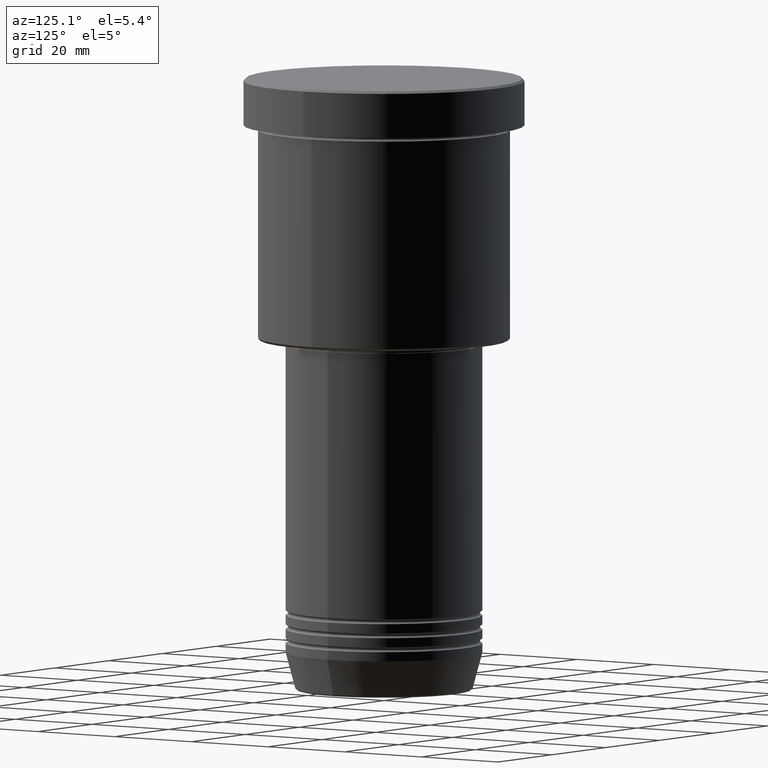
[diagram: clean part render]
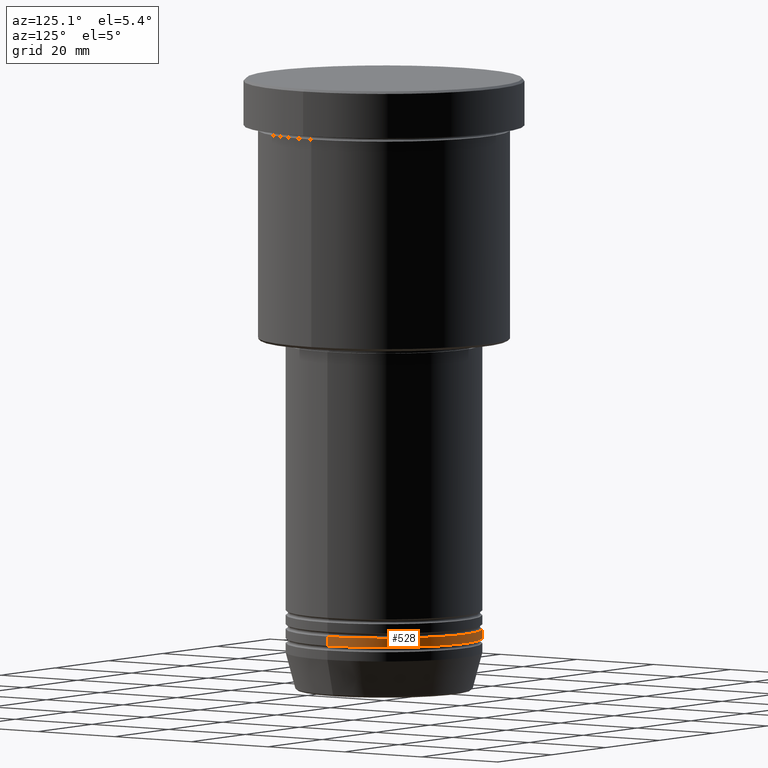
[diagram: same view with one face highlighted and labeled with its STEP entity id]
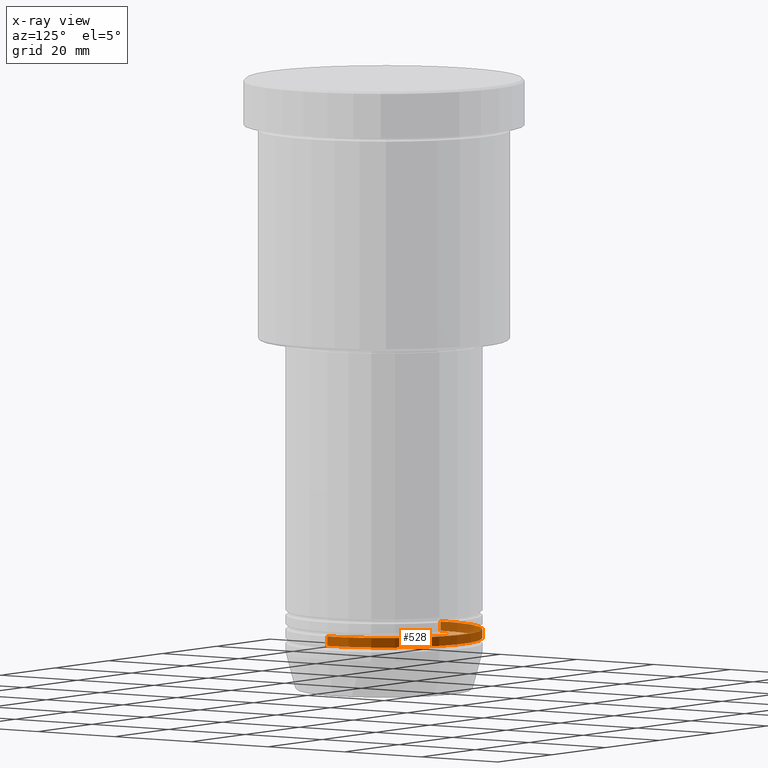
[diagram: x-ray of the same camera — body ghosted, the highlighted face saturated]
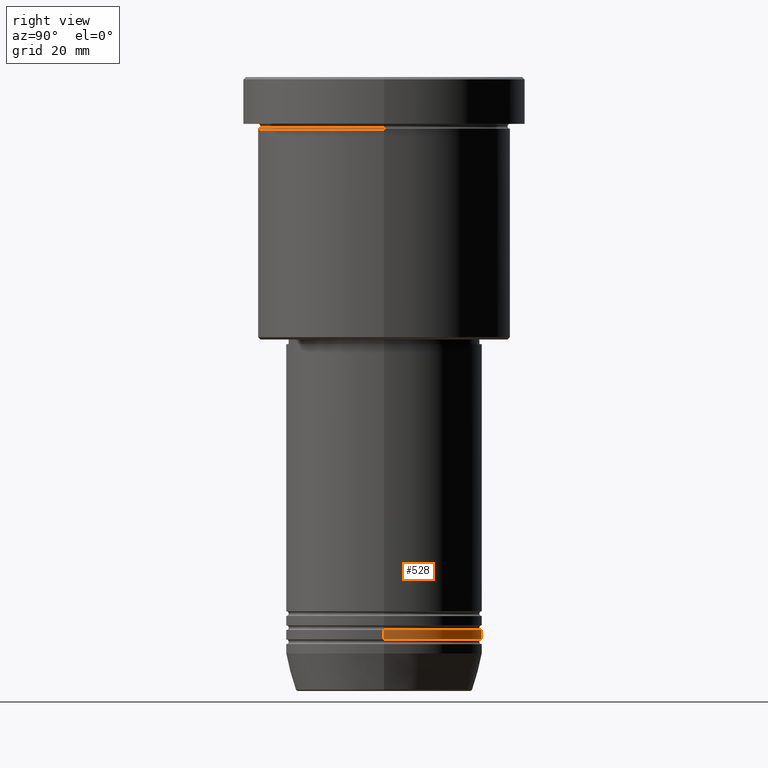
[diagram: same view with one face highlighted and labeled with its STEP entity id]
A machine part, auxiliary view. The second image highlights one B-rep face of the part: STEP entity #528.
The next image is the same camera in x-ray: the body ghosted, the highlighted face saturated — about 17% of this face is hidden behind the body in this view.
A second angle (right view) of the same face is appended — the face is thin or edge-on in the first view.
In plain terms, the highlighted cylindrical surface (partial cylindrical patch) has radius 21 mm, axis along (-0, -0, 1).
Its self-contained STEP definition (entity closure, byte-faithful):
#22 = FACE_OUTER_BOUND ( 'NONE', #474, .T. ) ;
#33 = EDGE_CURVE ( 'NONE', #554, #586, #658, .T. ) ;
#103 = DIRECTION ( 'NONE',  ( 1.000000000000000000, 0.000000000000000000, 0.000000000000000000 ) ) ;
#169 = DIRECTION ( 'NONE',  ( -0.000000000000000000, -0.000000000000000000, 1.000000000000000000 ) ) ;
#174 = CARTESIAN_POINT ( 'NONE',  ( 0.000000000000000000, 0.000000000000000000, -117.9999999999999858 ) ) ;
#181 = EDGE_CURVE ( 'NONE', #554, #286, #915, .T. ) ;
#189 = CYLINDRICAL_SURFACE ( 'NONE', #957, 21.00000000000000000 ) ;
#247 = DIRECTION ( 'NONE',  ( 1.000000000000000000, 0.000000000000000000, 0.000000000000000000 ) ) ;
#256 = EDGE_CURVE ( 'NONE', #286, #924, #964, .T. ) ;
#258 = CARTESIAN_POINT ( 'NONE',  ( -21.00000000000000000, 2.571758278209441661E-15, -119.9999999999999716 ) ) ;
#271 = VECTOR ( 'NONE', #865, 1000.000000000000000 ) ;
#286 = VERTEX_POINT ( 'NONE', #258 ) ;
#297 = AXIS2_PLACEMENT_3D ( 'NONE', #174, #552, #455 ) ;
#346 = CARTESIAN_POINT ( 'NONE',  ( 21.00000000000000000, 0.000000000000000000, -117.9999999999999858 ) ) ;
#455 = DIRECTION ( 'NONE',  ( 1.000000000000000000, 0.000000000000000000, 0.000000000000000000 ) ) ;
#474 = EDGE_LOOP ( 'NONE', ( #1178, #1062, #809, #620 ) ) ;
#519 = AXIS2_PLACEMENT_3D ( 'NONE', #1146, #1061, #247 ) ;
#528 = ADVANCED_FACE ( 'NONE', ( #22 ), #189, .T. ) ;
#552 = DIRECTION ( 'NONE',  ( -0.000000000000000000, -0.000000000000000000, 1.000000000000000000 ) ) ;
#554 = VERTEX_POINT ( 'NONE', #1026 ) ;
#586 = VERTEX_POINT ( 'NONE', #346 ) ;
#619 = CARTESIAN_POINT ( 'NONE',  ( -21.00000000000000000, 2.571758278209441661E-15, 0.000000000000000000 ) ) ;
#620 = ORIENTED_EDGE ( 'NONE', *, *, #33, .F. ) ;
#656 = CARTESIAN_POINT ( 'NONE',  ( -21.00000000000000000, 2.571758278209441661E-15, -117.9999999999999858 ) ) ;
#658 = LINE ( 'NONE', #668, #271 ) ;
#668 = CARTESIAN_POINT ( 'NONE',  ( 21.00000000000000000, 0.000000000000000000, 0.000000000000000000 ) ) ;
#690 = EDGE_CURVE ( 'NONE', #586, #924, #773, .T. ) ;
#759 = CARTESIAN_POINT ( 'NONE',  ( 0.000000000000000000, 0.000000000000000000, 0.000000000000000000 ) ) ;
#773 = CIRCLE ( 'NONE', #297, 21.00000000000000000 ) ;
#809 = ORIENTED_EDGE ( 'NONE', *, *, #690, .F. ) ;
#865 = DIRECTION ( 'NONE',  ( -0.000000000000000000, -0.000000000000000000, 1.000000000000000000 ) ) ;
#915 = CIRCLE ( 'NONE', #519, 21.00000000000000000 ) ;
#924 = VERTEX_POINT ( 'NONE', #656 ) ;
#957 = AXIS2_PLACEMENT_3D ( 'NONE', #759, #1001, #103 ) ;
#964 = LINE ( 'NONE', #619, #973 ) ;
#973 = VECTOR ( 'NONE', #169, 1000.000000000000000 ) ;
#1001 = DIRECTION ( 'NONE',  ( -0.000000000000000000, -0.000000000000000000, 1.000000000000000000 ) ) ;
#1026 = CARTESIAN_POINT ( 'NONE',  ( 21.00000000000000000, 0.000000000000000000, -119.9999999999999716 ) ) ;
#1061 = DIRECTION ( 'NONE',  ( -0.000000000000000000, -0.000000000000000000, 1.000000000000000000 ) ) ;
#1062 = ORIENTED_EDGE ( 'NONE', *, *, #256, .T. ) ;
#1146 = CARTESIAN_POINT ( 'NONE',  ( 0.000000000000000000, 0.000000000000000000, -119.9999999999999716 ) ) ;
#1178 = ORIENTED_EDGE ( 'NONE', *, *, #181, .T. ) ;